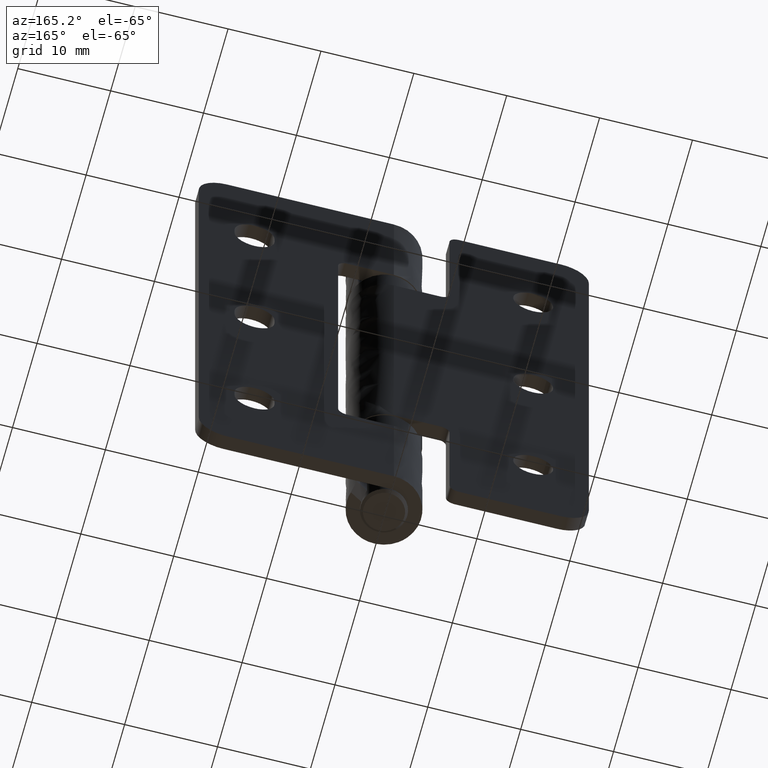
[diagram: clean part render]
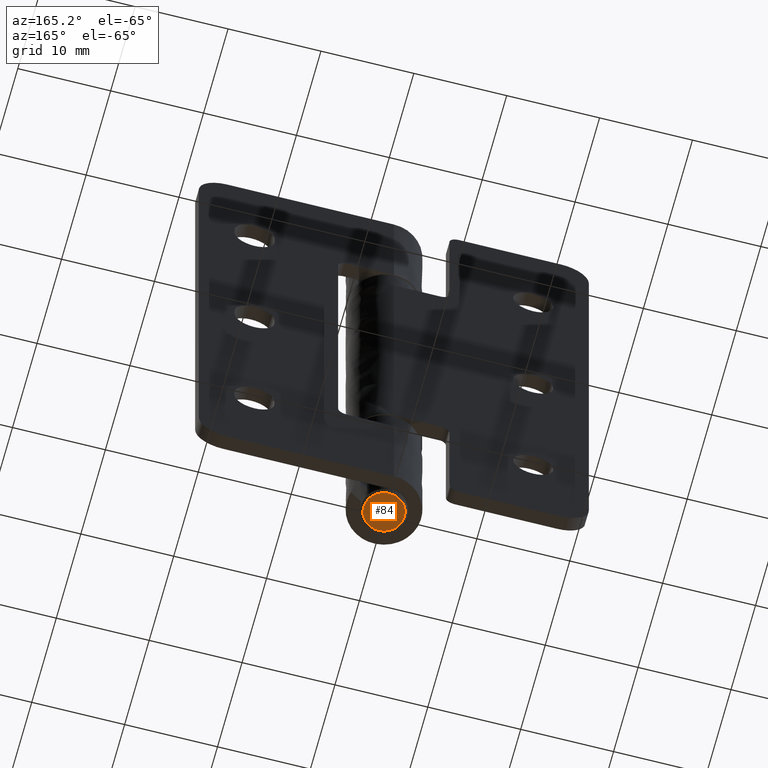
[diagram: same view with one face highlighted and labeled with its STEP entity id]
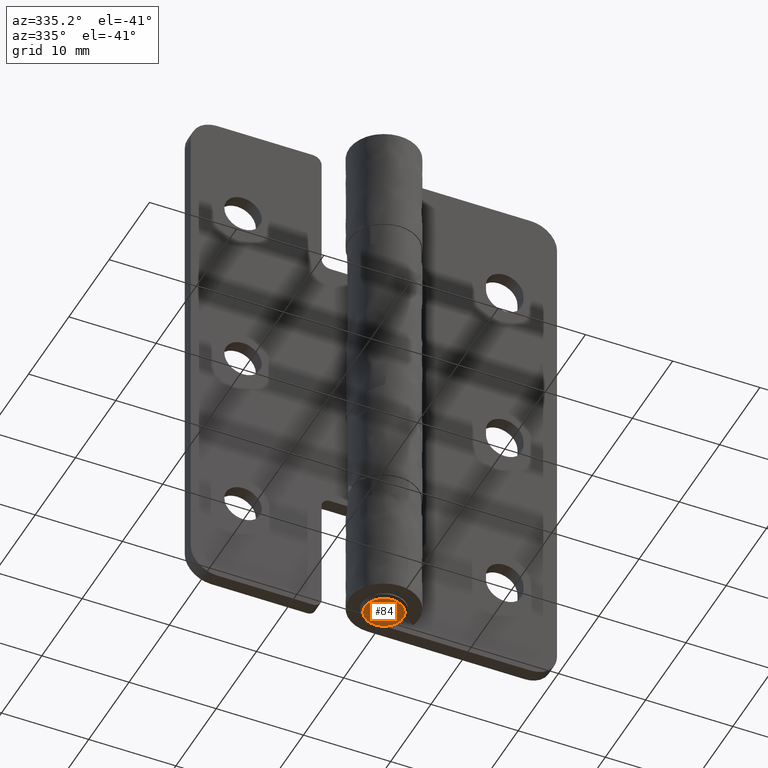
[diagram: same view with one face highlighted and labeled with its STEP entity id]
A machine part, auxiliary view. The second image highlights one B-rep face of the part: STEP entity #84.
A second angle (auxiliary view) of the same face is appended — the face is thin or edge-on in the first view.
In plain terms, the highlighted face is a freeform B-spline surface patch.
Its self-contained STEP definition (entity closure, byte-faithful):
#5=CARTESIAN_POINT('',(2.419779991471745,-2.419779991471385,-0.500000000000000));
#6=CARTESIAN_POINT('',(-2.419780109488948,-2.419779991471385,-0.500000000000000));
#7=CARTESIAN_POINT('',(2.419779991471745,2.419780109488581,-0.500000000000000));
#8=CARTESIAN_POINT('',(-2.419780109488948,2.419780109488581,-0.500000000000000));
#9=B_SPLINE_SURFACE_WITH_KNOTS('',1,1,((#5,#7),(#6,#8)),.UNSPECIFIED.,.F.,.F.,.U.,(2,2),(2,2),(0.0,4.839560100960694),(0.0,4.839560100959966),.UNSPECIFIED.);
#10=CARTESIAN_POINT('',(0.000001207061479,-2.199999999999490,-0.500000000000000));
#11=VERTEX_POINT('',#10);
#12=CARTESIAN_POINT('',(2.199999999999817,0.0,-0.500000000000000));
#13=VERTEX_POINT('',#12);
#14=CARTESIAN_POINT('',(0.000001207061479,-2.199999999999490,-0.500000000000000));
#15=CARTESIAN_POINT('',(0.188985883670808,-2.200041680970727,-0.499999999999950));
#16=CARTESIAN_POINT('',(0.611967831973309,-2.145225910868519,-0.500000000000099));
#17=CARTESIAN_POINT('',(1.153567595668950,-1.905225845797339,-0.500000000000021));
#18=CARTESIAN_POINT('',(1.559448626402663,-1.571931100093309,-0.499999999999893));
#19=CARTESIAN_POINT('',(1.851690555475981,-1.215848064878004,-0.500000000000149));
#20=CARTESIAN_POINT('',(2.117791925391081,-0.710815720938011,-0.499999999999567));
#21=CARTESIAN_POINT('',(2.200213251019653,-0.270010952430873,-0.500000000000561));
#22=CARTESIAN_POINT('',(2.199999999999817,0.0,-0.500000000000000));
#23=B_SPLINE_CURVE_WITH_KNOTS('',3,(#14,#15,#16,#17,#18,#19,#20,#21,#22),.UNSPECIFIED.,.F.,.U.,(4,1,1,1,1,1,4),(0.000000087950259,0.566961550516999,1.268924875579947,1.754857912318810,2.132856721796222,2.645826638264871,3.455772922009220),.UNSPECIFIED.);
#24=EDGE_CURVE('',#11,#13,#23,.T.);
#25=ORIENTED_EDGE('',*,*,#24,.F.);
#26=CARTESIAN_POINT('',(-1.595823288338112,-1.514379755370185,-0.500000150675945));
#27=VERTEX_POINT('',#26);
#28=CARTESIAN_POINT('',(-1.595823288338112,-1.514379755370185,-0.500000150675945));
#29=CARTESIAN_POINT('',(-1.461432483986345,-1.656072916476409,-0.500000137987065));
#30=CARTESIAN_POINT('',(-1.147303984971427,-1.909223454990407,-0.500000108326482));
#31=CARTESIAN_POINT('',(-0.595142815014380,-2.146435805338927,-0.500000056194551));
#32=CARTESIAN_POINT('',(-0.195288621949632,-2.200052071829186,-0.500000018437760));
#33=CARTESIAN_POINT('',(0.000001207061479,-2.199999999999490,-0.500000000000000));
#34=B_SPLINE_CURVE_WITH_KNOTS('',3,(#28,#29,#30,#31,#32,#33),.UNSPECIFIED.,.F.,.U.,(4,1,1,4),(0.000000023278627,0.585865656005748,1.199620001079811,1.785484810786041),.UNSPECIFIED.);
#35=EDGE_CURVE('',#27,#11,#34,.T.);
#36=ORIENTED_EDGE('',*,*,#35,.F.);
#37=CARTESIAN_POINT('',(-2.199999999999823,0.0,-0.500000000000000));
#38=VERTEX_POINT('',#37);
#39=CARTESIAN_POINT('',(-2.199999999999823,0.0,-0.500000000000000));
#40=CARTESIAN_POINT('',(-2.200117556083352,-0.226199351088564,-0.500000022504096));
#41=CARTESIAN_POINT('',(-2.151266566237109,-0.539304517195266,-0.500000053662042));
#42=CARTESIAN_POINT('',(-1.950741058668538,-1.059768788621315,-0.500000105440236));
#43=CARTESIAN_POINT('',(-1.763634822757264,-1.337786800913329,-0.500000133106930));
#44=CARTESIAN_POINT('',(-1.595823288338112,-1.514379755370185,-0.500000150675945));
#45=B_SPLINE_CURVE_WITH_KNOTS('',3,(#39,#40,#41,#42,#43,#44),.UNSPECIFIED.,.F.,.U.,(4,1,1,4),(0.000044088057130,0.678589510743379,0.939570678129242,1.670311746514825),.UNSPECIFIED.);
#46=EDGE_CURVE('',#38,#27,#45,.T.);
#47=ORIENTED_EDGE('',*,*,#46,.F.);
#48=CARTESIAN_POINT('',(-0.000001207061484,2.199999999999489,-0.500000000000000));
#49=VERTEX_POINT('',#48);
#50=CARTESIAN_POINT('',(-0.000001207061484,2.199999999999489,-0.500000000000000));
#51=CARTESIAN_POINT('',(-0.188986364743557,2.200042501321169,-0.500000000000057));
#52=CARTESIAN_POINT('',(-0.611966593309250,2.145224056809854,-0.499999999999943));
#53=CARTESIAN_POINT('',(-1.153568175327902,1.905226713234947,-0.500000000000028));
#54=CARTESIAN_POINT('',(-1.559448644294101,1.571930816913548,-0.499999999999957));
#55=CARTESIAN_POINT('',(-1.851699076628182,1.215850582068003,-0.499999999999830));
#56=CARTESIAN_POINT('',(-2.117757791603589,0.710806824518412,-0.500000000000611));
#57=CARTESIAN_POINT('',(-2.200246050515177,0.270017721833737,-0.499999999999332));
#58=CARTESIAN_POINT('',(-2.199999999999823,0.0,-0.500000000000000));
#59=B_SPLINE_CURVE_WITH_KNOTS('',3,(#50,#51,#52,#53,#54,#55,#56,#57,#58),.UNSPECIFIED.,.F.,.U.,(4,1,1,1,1,1,4),(0.000000087950557,0.566961550517246,1.268924875580131,1.754857912318918,2.132856721796274,2.645826638264873,3.455772922009223),.UNSPECIFIED.);
#60=EDGE_CURVE('',#49,#38,#59,.T.);
#61=ORIENTED_EDGE('',*,*,#60,.F.);
#62=CARTESIAN_POINT('',(1.595823288338105,1.514379755370185,-0.500000150675945));
#63=VERTEX_POINT('',#62);
#64=CARTESIAN_POINT('',(1.595823288338105,1.514379755370185,-0.500000150675945));
#65=CARTESIAN_POINT('',(1.461433476518375,1.656074322696520,-0.500000137987108));
#66=CARTESIAN_POINT('',(1.147301507230457,1.909218358542313,-0.500000108327022));
#67=CARTESIAN_POINT('',(0.595144137185686,2.146440288191364,-0.500000056192988));
#68=CARTESIAN_POINT('',(0.195288388301058,2.200050529898693,-0.500000018439053));
#69=CARTESIAN_POINT('',(-0.000001207061484,2.199999999999489,-0.500000000000000));
#70=B_SPLINE_CURVE_WITH_KNOTS('',3,(#64,#65,#66,#67,#68,#69),.UNSPECIFIED.,.F.,.U.,(4,1,1,4),(0.000000023278810,0.585865656005851,1.199620001079848,1.785484810786035),.UNSPECIFIED.);
#71=EDGE_CURVE('',#63,#49,#70,.T.);
#72=ORIENTED_EDGE('',*,*,#71,.F.);
#73=CARTESIAN_POINT('',(2.199999999999817,0.0,-0.500000000000000));
#74=CARTESIAN_POINT('',(2.200115786371227,0.226196861220309,-0.500000022505574));
#75=CARTESIAN_POINT('',(2.151267054978839,0.539307762534144,-0.500000053659797));
#76=CARTESIAN_POINT('',(1.950740722850276,1.059765902828924,-0.500000105444123));
#77=CARTESIAN_POINT('',(1.763634828443313,1.337787955691082,-0.500000133103690));
#78=CARTESIAN_POINT('',(1.595823288338105,1.514379755370185,-0.500000150675945));
#79=B_SPLINE_CURVE_WITH_KNOTS('',3,(#73,#74,#75,#76,#77,#78),.UNSPECIFIED.,.F.,.U.,(4,1,1,4),(0.000044088057326,0.678589510743492,0.939570678129324,1.670311746514824),.UNSPECIFIED.);
#80=EDGE_CURVE('',#13,#63,#79,.T.);
#81=ORIENTED_EDGE('',*,*,#80,.F.);
#82=EDGE_LOOP('',(#25,#36,#47,#61,#72,#81));
#83=FACE_OUTER_BOUND('',#82,.T.);
#84=ADVANCED_FACE('',(#83),#9,.T.);